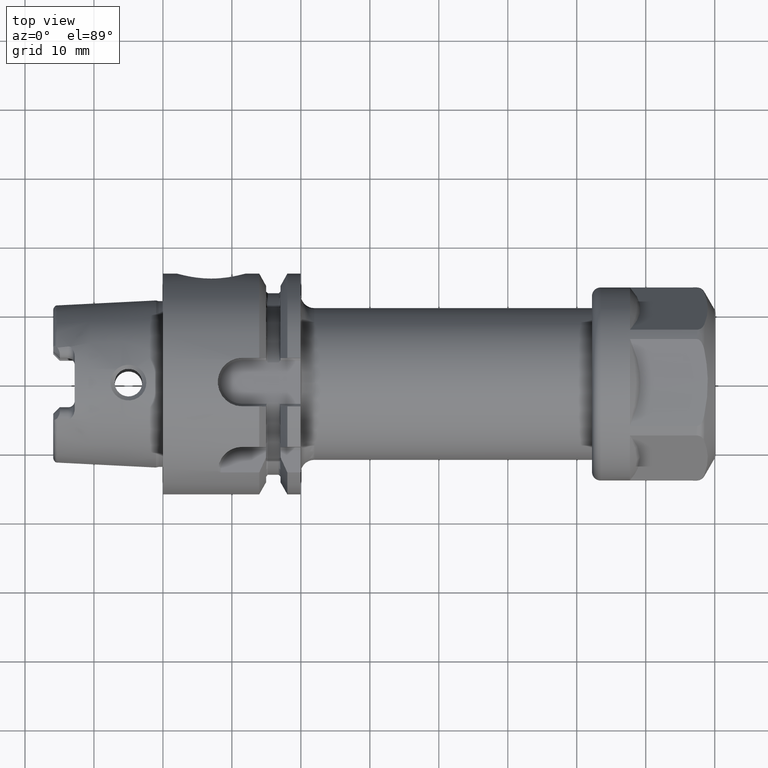
[diagram: clean part render]
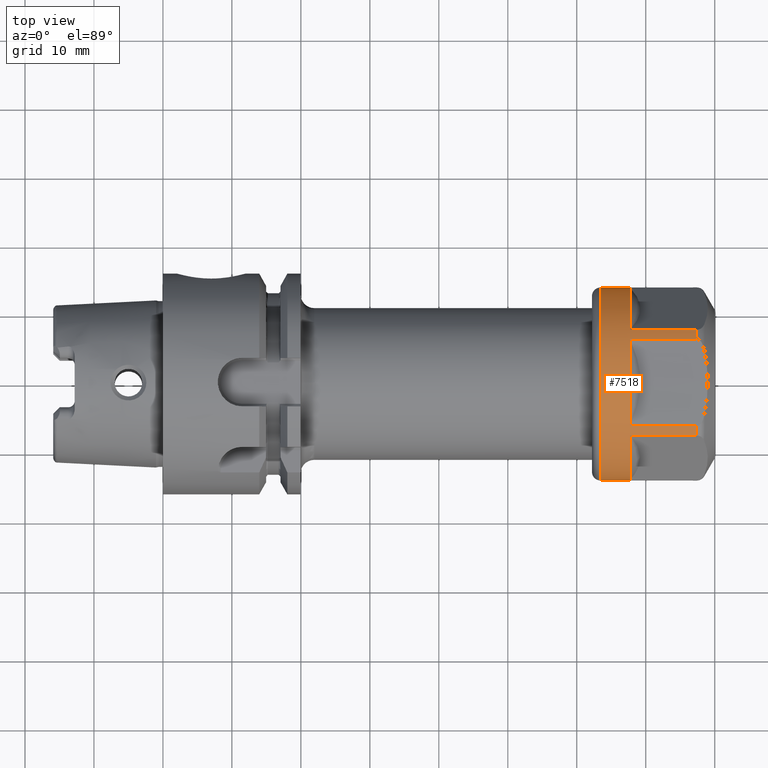
[diagram: same view with one face highlighted and labeled with its STEP entity id]
A machine part, top view. The second image highlights one B-rep face of the part: STEP entity #7518.
In plain terms, the highlighted cylindrical surface (partial cylindrical patch) has radius 14 mm, axis along (1, 0, 0).
Its self-contained STEP definition (entity closure, byte-faithful):
#6673=DIRECTION('',(-1.E0,0.E0,1.133010541669E-10));
#6674=VECTOR('',#6673,1.395192378865E1);
#6675=CARTESIAN_POINT('',(1.520192378865E1,1.4E1,-1.972953879608E-10));
#6676=LINE('',#6675,#6674);
#6682=DIRECTION('',(-1.E0,0.E0,-1.133011566448E-10));
#6683=VECTOR('',#6682,1.395192378865E1);
#6684=CARTESIAN_POINT('',(1.520192378865E1,-1.4E1,1.972953760202E-10));
#6685=LINE('',#6684,#6683);
#6749=CARTESIAN_POINT('',(1.520192378865E1,-1.397769760054E1,
7.899175830396E-1));
#6751=CARTESIAN_POINT('',(1.520192378865E1,-7.672937494076E0,1.171008241696E1));
#6769=CARTESIAN_POINT('',(1.520192378865E1,-6.304760106459E0,1.25E1));
#6771=CARTESIAN_POINT('',(1.520192378865E1,6.304760106459E0,1.25E1));
#6789=CARTESIAN_POINT('',(1.520192378865E1,7.672937494076E0,1.171008241696E1));
#6801=CARTESIAN_POINT('',(1.520192378865E1,1.397769760054E1,7.899175830396E-1));
#6960=DIRECTION('',(9.999999999995E-1,6.789211628906E-7,-7.271250890031E-7));
#6961=VECTOR('',#6960,9.700517802338E0);
#6962=CARTESIAN_POINT('',(5.501405986314E0,-7.672944079963E0,1.171008947045E1));
#6963=LINE('',#6962,#6961);
#6964=DIRECTION('',(-1.E0,0.E0,0.E0));
#6965=VECTOR('',#6964,9.700306120238E0);
#6966=CARTESIAN_POINT('',(1.520192378865E1,-1.397769760054E1,
7.899175830396E-1));
#6967=LINE('',#6966,#6965);
#6968=CARTESIAN_POINT('',(5.501103096150E0,4.065342084010E-3,
-2.609772246292E-3));
#6969=DIRECTION('',(-1.E0,0.E0,0.E0));
#6970=DIRECTION('',(0.E0,-9.983973832786E-1,5.659209363951E-2));
#6971=AXIS2_PLACEMENT_3D('',#6968,#6969,#6970);
#6973=CARTESIAN_POINT('',(1.520192378865E1,0.E0,0.E0));
#6974=DIRECTION('',(-1.E0,0.E0,0.E0));
#6975=DIRECTION('',(0.E0,4.503400076042E-1,8.928571428571E-1));
#6976=AXIS2_PLACEMENT_3D('',#6973,#6974,#6975);
#6978=CARTESIAN_POINT('',(1.520192378865E1,0.E0,0.E0));
#6979=DIRECTION('',(-1.E0,0.E0,0.E0));
#6980=DIRECTION('',(0.E0,-5.480669638626E-1,8.364344583543E-1));
#6981=AXIS2_PLACEMENT_3D('',#6978,#6979,#6980);
#6983=CARTESIAN_POINT('',(1.520192378865E1,0.E0,0.E0));
#6984=DIRECTION('',(-1.E0,0.E0,0.E0));
#6985=DIRECTION('',(0.E0,-1.E0,0.E0));
#6986=AXIS2_PLACEMENT_3D('',#6983,#6984,#6985);
#6988=CARTESIAN_POINT('',(1.25E0,0.E0,0.E0));
#6989=DIRECTION('',(-1.E0,0.E0,0.E0));
#6990=DIRECTION('',(0.E0,-1.E0,0.E0));
#6991=AXIS2_PLACEMENT_3D('',#6988,#6989,#6990);
#6993=CARTESIAN_POINT('',(1.520192378865E1,0.E0,0.E0));
#6994=DIRECTION('',(-1.E0,0.E0,0.E0));
#6995=DIRECTION('',(0.E0,9.984069714668E-1,5.642268450283E-2));
#6996=AXIS2_PLACEMENT_3D('',#6993,#6994,#6995);
#6998=CARTESIAN_POINT('',(5.510095784573E0,-3.604537610797E-3,
-2.338467821178E-3));
#6999=DIRECTION('',(-1.E0,0.E0,0.E0));
#7000=DIRECTION('',(0.E0,5.481704884955E-1,8.363666155118E-1));
#7001=AXIS2_PLACEMENT_3D('',#6998,#6999,#7000);
#7018=DIRECTION('',(9.999999999920E-1,3.872004235276E-6,1.005862061417E-6));
#7019=VECTOR('',#7018,9.691332242430E0);
#7020=CARTESIAN_POINT('',(5.510591546294E0,1.397766007566E1,7.899078348962E-1));
#7021=LINE('',#7020,#7019);
#7022=DIRECTION('',(-1.E0,0.E0,0.E0));
#7023=VECTOR('',#7022,9.691561833754E0);
#7024=CARTESIAN_POINT('',(1.520192378865E1,7.672937494076E0,1.171008241696E1));
#7025=LINE('',#7024,#7023);
#7058=DIRECTION('',(9.999999999999E-1,9.964366215769E-8,-4.341640402664E-7));
#7059=VECTOR('',#7058,9.691827833902E0);
#7060=CARTESIAN_POINT('',(5.510095954746E0,6.304759140730E0,1.250000420784E1));
#7061=LINE('',#7060,#7059);
#7062=DIRECTION('',(-1.E0,0.E0,0.E0));
#7063=VECTOR('',#7062,9.691824900384E0);
#7064=CARTESIAN_POINT('',(1.520192378865E1,-6.304760106459E0,1.25E1));
#7065=LINE('',#7064,#7063);
#7082=CARTESIAN_POINT('',(5.510019594413E0,-1.294353786081E-6,
-9.212448693061E-4));
#7083=DIRECTION('',(-1.E0,0.E0,0.E0));
#7084=DIRECTION('',(0.E0,-4.503134764953E-1,8.928705241448E-1));
#7085=AXIS2_PLACEMENT_3D('',#7082,#7083,#7084);
#7115=CARTESIAN_POINT('',(1.25E0,1.4E1,0.E0));
#7116=CARTESIAN_POINT('',(1.25E0,-1.4E1,0.E0));
#7117=VERTEX_POINT('',#7115);
#7118=VERTEX_POINT('',#7116);
#7123=CARTESIAN_POINT('',(1.520192378865E1,1.4E1,-1.972953879608E-10));
#7124=VERTEX_POINT('',#7123);
#7125=CARTESIAN_POINT('',(1.520192378865E1,-1.4E1,1.972953760202E-10));
#7126=VERTEX_POINT('',#7125);
#7139=VERTEX_POINT('',#6749);
#7140=VERTEX_POINT('',#6751);
#7141=VERTEX_POINT('',#6769);
#7142=VERTEX_POINT('',#6771);
#7143=VERTEX_POINT('',#6789);
#7144=VERTEX_POINT('',#6801);
#7151=CARTESIAN_POINT('',(5.501103096150E0,-1.397821137922E1,
7.899467055235E-1));
#7152=CARTESIAN_POINT('',(5.501103096150E0,-7.673107321420E0,1.171034152008E1));
#7153=VERTEX_POINT('',#7151);
#7154=VERTEX_POINT('',#7152);
#7167=CARTESIAN_POINT('',(5.510095784573E0,7.673083408015E0,1.171030504395E1));
#7168=CARTESIAN_POINT('',(5.510095784573E0,1.397816374626E1,7.899439973725E-1));
#7169=VERTEX_POINT('',#7167);
#7170=VERTEX_POINT('',#7168);
#7171=CARTESIAN_POINT('',(5.510019594413E0,-6.304795814642E0,1.250007080131E1));
#7172=CARTESIAN_POINT('',(5.510019594413E0,6.304795289710E0,1.250006976046E1));
#7173=VERTEX_POINT('',#7171);
#7174=VERTEX_POINT('',#7172);
#7488=CARTESIAN_POINT('',(-8.9E-1,0.E0,0.E0));
#7489=DIRECTION('',(1.E0,0.E0,0.E0));
#7490=DIRECTION('',(0.E0,-1.E0,0.E0));
#7491=AXIS2_PLACEMENT_3D('',#7488,#7489,#7490);
#7492=CYLINDRICAL_SURFACE('',#7491,1.4E1);
#7494=ORIENTED_EDGE('',*,*,#7493,.F.);
#7496=ORIENTED_EDGE('',*,*,#7495,.F.);
#7497=ORIENTED_EDGE('',*,*,#7356,.F.);
#7499=ORIENTED_EDGE('',*,*,#7498,.F.);
#7501=ORIENTED_EDGE('',*,*,#7500,.F.);
#7503=ORIENTED_EDGE('',*,*,#7502,.F.);
#7504=ORIENTED_EDGE('',*,*,#7340,.F.);
#7505=ORIENTED_EDGE('',*,*,#7467,.F.);
#7506=ORIENTED_EDGE('',*,*,#7482,.F.);
#7507=ORIENTED_EDGE('',*,*,#7472,.F.);
#7508=ORIENTED_EDGE('',*,*,#7326,.F.);
#7509=ORIENTED_EDGE('',*,*,#7281,.T.);
#7511=ORIENTED_EDGE('',*,*,#7510,.T.);
#7512=ORIENTED_EDGE('',*,*,#7277,.F.);
#7513=ORIENTED_EDGE('',*,*,#7370,.F.);
#7515=ORIENTED_EDGE('',*,*,#7514,.F.);
#7516=EDGE_LOOP('',(#7494,#7496,#7497,#7499,#7501,#7503,#7504,#7505,#7506,#7507,
#7508,#7509,#7511,#7512,#7513,#7515));
#7517=FACE_OUTER_BOUND('',#7516,.F.);
#7518=ADVANCED_FACE('',(#7517),#7492,.T.);
#6972=CIRCLE('',#6971,1.400472092124E1);
#6977=CIRCLE('',#6976,1.4E1);
#6982=CIRCLE('',#6981,1.4E1);
#6987=CIRCLE('',#6986,1.4E1);
#6992=CIRCLE('',#6991,1.4E1);
#6997=CIRCLE('',#6996,1.4E1);
#7002=CIRCLE('',#7001,1.400419779382E1);
#7086=CIRCLE('',#7085,1.400090125962E1);
#7277=EDGE_CURVE('',#7124,#7117,#6676,.T.);
#7281=EDGE_CURVE('',#7126,#7118,#6685,.T.);
#7326=EDGE_CURVE('',#7126,#7139,#6987,.T.);
#7340=EDGE_CURVE('',#7140,#7141,#6982,.T.);
#7356=EDGE_CURVE('',#7142,#7143,#6977,.T.);
#7370=EDGE_CURVE('',#7144,#7124,#6997,.T.);
#7467=EDGE_CURVE('',#7154,#7140,#6963,.T.);
#7472=EDGE_CURVE('',#7139,#7153,#6967,.T.);
#7482=EDGE_CURVE('',#7153,#7154,#6972,.T.);
#7493=EDGE_CURVE('',#7169,#7170,#7002,.T.);
#7495=EDGE_CURVE('',#7143,#7169,#7025,.T.);
#7498=EDGE_CURVE('',#7174,#7142,#7061,.T.);
#7500=EDGE_CURVE('',#7173,#7174,#7086,.T.);
#7502=EDGE_CURVE('',#7141,#7173,#7065,.T.);
#7510=EDGE_CURVE('',#7118,#7117,#6992,.T.);
#7514=EDGE_CURVE('',#7170,#7144,#7021,.T.);